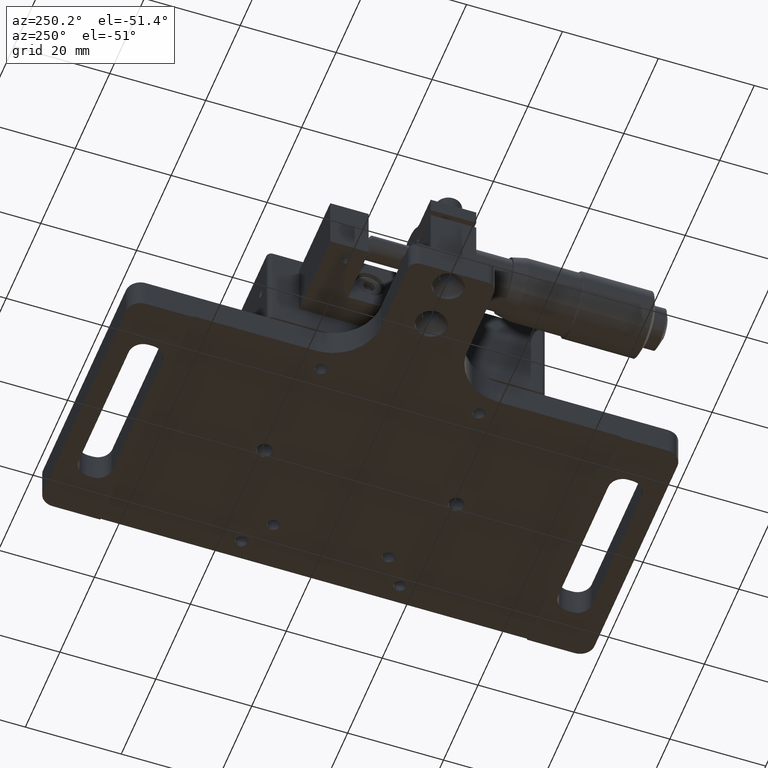
[diagram: clean part render]
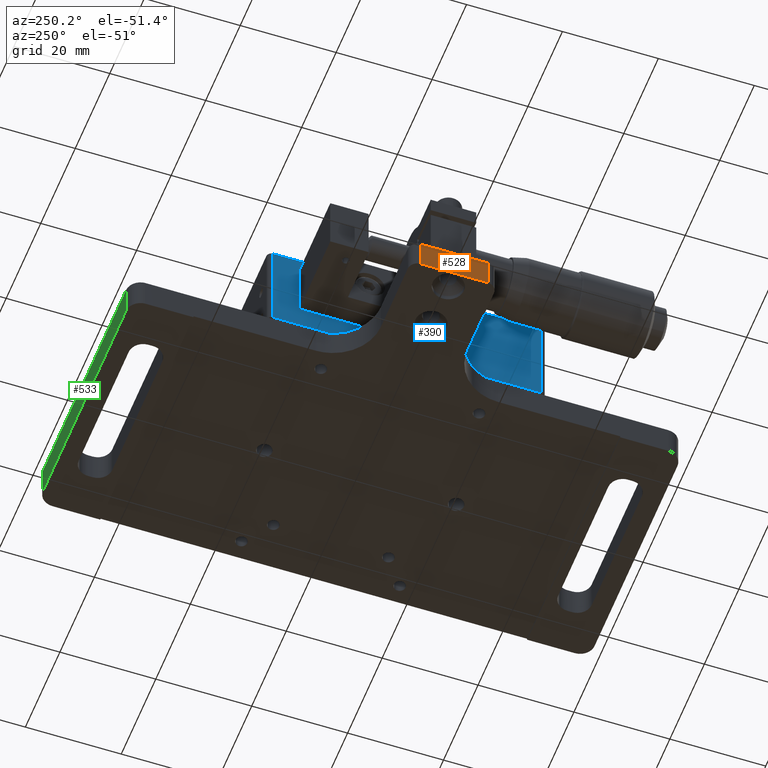
[diagram: same view with three faces highlighted in distinct colors, each labeled with its STEP entity id]
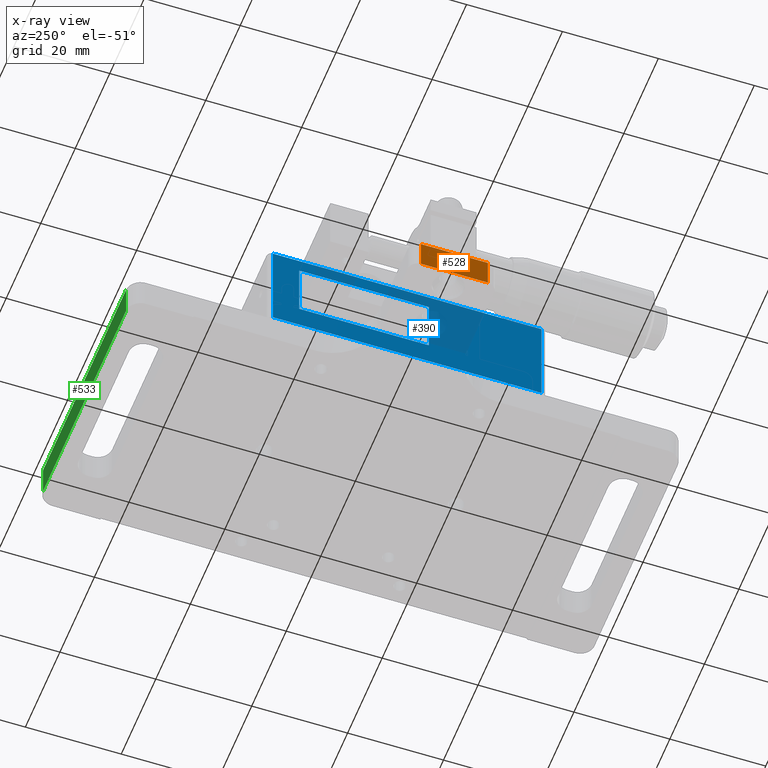
[diagram: x-ray of the same camera — body ghosted, the three highlighted faces saturated]
A machine part, auxiliary view with three faces highlighted in distinct colors.
The next image is the same camera in x-ray (body ghosted, the three faces saturated) — at least one of them is partly hidden behind the body in this view.
Their STEP definitions:

[orange] entity #528 — the highlighted face is a freeform B-spline surface patch.
#528=ADVANCED_FACE('',(#1149),#22418,.T.);
#1149=FACE_OUTER_BOUND('',#1820,.T.);
#1820=EDGE_LOOP('',(#3285,#3286,#3287,#3288));
#3285=ORIENTED_EDGE('',*,*,#18628,.F.);
#3286=ORIENTED_EDGE('',*,*,#18671,.T.);
#3287=ORIENTED_EDGE('',*,*,#18538,.F.);
#3288=ORIENTED_EDGE('',*,*,#18657,.F.);
#6487=PCURVE('',#22412,#9893);
#6625=PCURVE('',#22415,#10031);
#6674=PCURVE('',#22765,#10080);
#6691=PCURVE('',#22418,#10097);
#6692=PCURVE('',#22418,#10098);
#6693=PCURVE('',#22418,#10099);
#6694=PCURVE('',#22418,#10100);
#6698=PCURVE('',#22766,#10104);
#9893=DEFINITIONAL_REPRESENTATION('',(#13295),#46445);
#10031=DEFINITIONAL_REPRESENTATION('',(#13445),#46445);
#10080=DEFINITIONAL_REPRESENTATION('',(#13469),#46445);
#10097=DEFINITIONAL_REPRESENTATION('',(#13487),#46445);
#10098=DEFINITIONAL_REPRESENTATION('',(#13489),#46445);
#10099=DEFINITIONAL_REPRESENTATION('',(#13490),#46445);
#10100=DEFINITIONAL_REPRESENTATION('',(#13491),#46445);
#10104=DEFINITIONAL_REPRESENTATION('',(#13496),#46445);
#13294=B_SPLINE_CURVE_WITH_KNOTS('',1,(#32924,#32925),.UNSPECIFIED.,.F.,
 .F.,(2,2),(-14.,0.),.UNSPECIFIED.);
#13295=B_SPLINE_CURVE_WITH_KNOTS('',1,(#32926,#32927),.UNSPECIFIED.,.F.,
 .F.,(2,2),(-14.,0.),.UNSPECIFIED.);
#13444=B_SPLINE_CURVE_WITH_KNOTS('',1,(#33498,#33499),.UNSPECIFIED.,.F.,
 .F.,(2,2),(-14.,0.),.UNSPECIFIED.);
#13445=B_SPLINE_CURVE_WITH_KNOTS('',1,(#33500,#33501),.UNSPECIFIED.,.F.,
 .F.,(2,2),(-14.,0.),.UNSPECIFIED.);
#13468=B_SPLINE_CURVE_WITH_KNOTS('',1,(#33740,#33741),.UNSPECIFIED.,.F.,
 .F.,(2,2),(0.,6.19999999999997),.UNSPECIFIED.);
#13469=B_SPLINE_CURVE_WITH_KNOTS('',1,(#33742,#33743),.UNSPECIFIED.,.F.,
 .F.,(2,2),(0.,6.19999999999997),.UNSPECIFIED.);
#13487=B_SPLINE_CURVE_WITH_KNOTS('',1,(#33814,#33815),.UNSPECIFIED.,.F.,
 .F.,(2,2),(-14.,0.),.UNSPECIFIED.);
#13488=B_SPLINE_CURVE_WITH_KNOTS('',1,(#33816,#33817),.UNSPECIFIED.,.F.,
 .F.,(2,2),(-6.19999999999997,0.),.UNSPECIFIED.);
#13489=B_SPLINE_CURVE_WITH_KNOTS('',1,(#33818,#33819),.UNSPECIFIED.,.F.,
 .F.,(2,2),(-6.19999999999997,0.),.UNSPECIFIED.);
#13490=B_SPLINE_CURVE_WITH_KNOTS('',1,(#33820,#33821),.UNSPECIFIED.,.F.,
 .F.,(2,2),(-14.,0.),.UNSPECIFIED.);
#13491=B_SPLINE_CURVE_WITH_KNOTS('',1,(#33822,#33823),.UNSPECIFIED.,.F.,
 .F.,(2,2),(0.,6.19999999999997),.UNSPECIFIED.);
#13496=B_SPLINE_CURVE_WITH_KNOTS('',1,(#33832,#33833),.UNSPECIFIED.,.F.,
 .F.,(2,2),(-6.19999999999997,0.),.UNSPECIFIED.);
#16801=SURFACE_CURVE('',#13294,(#6487,#6693),.PCURVE_S1.);
#16891=SURFACE_CURVE('',#13444,(#6625,#6691),.PCURVE_S1.);
#16920=SURFACE_CURVE('',#13468,(#6674,#6694),.PCURVE_S1.);
#16934=SURFACE_CURVE('',#13488,(#6692,#6698),.PCURVE_S1.);
#18538=EDGE_CURVE('',#21485,#21486,#16801,.T.);
#18628=EDGE_CURVE('',#21556,#21557,#16891,.T.);
#18657=EDGE_CURVE('',#21557,#21485,#16920,.T.);
#18671=EDGE_CURVE('',#21556,#21486,#16934,.T.);
#21485=VERTEX_POINT('',#28720);
#21486=VERTEX_POINT('',#28721);
#21556=VERTEX_POINT('',#28791);
#21557=VERTEX_POINT('',#28792);
#22412=B_SPLINE_SURFACE_WITH_KNOTS('',1,1,((#24821,#24822),(#24823,#24824)),
 .UNSPECIFIED.,.F.,.F.,.F.,(2,2),(2,2),(-35.27,62.77),(-69.12,69.12),
 .UNSPECIFIED.);
#22415=B_SPLINE_SURFACE_WITH_KNOTS('',1,1,((#25121,#25122),(#25123,#25124)),
 .UNSPECIFIED.,.F.,.F.,.F.,(2,2),(2,2),(-53.52,53.52),(-42.6138701326207,
55.4261298673793),.UNSPECIFIED.);
#22418=B_SPLINE_SURFACE_WITH_KNOTS('',1,1,((#25169,#25170),(#25171,#25172)),
 .UNSPECIFIED.,.F.,.F.,.F.,(2,2),(2,2),(-5.23999999999997,2.44),(-17.52,
-0.479999999999995),.UNSPECIFIED.);
#22765=(
BOUNDED_SURFACE()
B_SPLINE_SURFACE(2,1,((#25147,#25148),(#25149,#25150),(#25151,#25152),(#25153,
#25154),(#25155,#25156),(#25157,#25158),(#25159,#25160),(#25161,#25162),
(#25163,#25164)),.UNSPECIFIED.,.T.,.F.,.F.)
B_SPLINE_SURFACE_WITH_KNOTS((3,2,2,2,3),(2,2),(0.,1.5707963267949,3.14159265358979,
4.71238898038469,6.28318530717959),(0.,7.67999999999996),.UNSPECIFIED.)
GEOMETRIC_REPRESENTATION_ITEM()
RATIONAL_B_SPLINE_SURFACE(((1.,1.),(0.707106781186548,0.707106781186548),
(1.,1.),(0.707106781186548,0.707106781186548),(1.,1.),(0.707106781186548,
0.707106781186548),(1.,1.),(0.707106781186548,0.707106781186548),(1.,1.)))
REPRESENTATION_ITEM('')
SURFACE()
);
#22766=(
BOUNDED_SURFACE()
B_SPLINE_SURFACE(2,1,((#25173,#25174),(#25175,#25176),(#25177,#25178),(#25179,
#25180),(#25181,#25182),(#25183,#25184),(#25185,#25186),(#25187,#25188),
(#25189,#25190)),.UNSPECIFIED.,.T.,.F.,.F.)
B_SPLINE_SURFACE_WITH_KNOTS((3,2,2,2,3),(2,2),(0.,1.5707963267949,3.14159265358979,
4.71238898038469,6.28318530717959),(0.,7.67999999999996),.UNSPECIFIED.)
GEOMETRIC_REPRESENTATION_ITEM()
RATIONAL_B_SPLINE_SURFACE(((1.,1.),(0.707106781186548,0.707106781186548),
(1.,1.),(0.707106781186548,0.707106781186548),(1.,1.),(0.707106781186548,
0.707106781186548),(1.,1.),(0.707106781186548,0.707106781186548),(1.,1.)))
REPRESENTATION_ITEM('')
SURFACE()
);
#24821=CARTESIAN_POINT('',(35.8970493497981,-8.26680358437653,-53.52));
#24822=CARTESIAN_POINT('',(35.8970493497981,-8.26680358437653,84.72));
#24823=CARTESIAN_POINT('',(-62.1429506502019,-8.26680358437653,-53.52));
#24824=CARTESIAN_POINT('',(-62.1429506502019,-8.26680358437653,84.72));
#25121=CARTESIAN_POINT('',(35.8970493497981,-14.4668035843765,-37.92));
#25122=CARTESIAN_POINT('',(-62.1429506502019,-14.4668035843765,-37.92));
#25123=CARTESIAN_POINT('',(35.8970493497981,-14.4668035843765,69.12));
#25124=CARTESIAN_POINT('',(-62.1429506502019,-14.4668035843765,69.12));
#25147=CARTESIAN_POINT('',(-49.8729506502019,-15.2068035843765,8.59999999999997));
#25148=CARTESIAN_POINT('',(-49.8729506502019,-7.52680358437653,8.59999999999997));
#25149=CARTESIAN_POINT('',(-49.8729506502019,-15.2068035843765,6.59999999999997));
#25150=CARTESIAN_POINT('',(-49.8729506502019,-7.52680358437653,6.59999999999997));
#25151=CARTESIAN_POINT('',(-51.8729506502019,-15.2068035843765,6.59999999999997));
#25152=CARTESIAN_POINT('',(-51.8729506502019,-7.52680358437653,6.59999999999997));
#25153=CARTESIAN_POINT('',(-53.8729506502019,-15.2068035843765,6.59999999999997));
#25154=CARTESIAN_POINT('',(-53.8729506502019,-7.52680358437653,6.59999999999997));
#25155=CARTESIAN_POINT('',(-53.8729506502019,-15.2068035843765,8.59999999999997));
#25156=CARTESIAN_POINT('',(-53.8729506502019,-7.52680358437653,8.59999999999997));
#25157=CARTESIAN_POINT('',(-53.8729506502019,-15.2068035843765,10.6));
#25158=CARTESIAN_POINT('',(-53.8729506502019,-7.52680358437653,10.6));
#25159=CARTESIAN_POINT('',(-51.8729506502019,-15.2068035843765,10.6));
#25160=CARTESIAN_POINT('',(-51.8729506502019,-7.52680358437653,10.6));
#25161=CARTESIAN_POINT('',(-49.8729506502019,-15.2068035843765,10.6));
#25162=CARTESIAN_POINT('',(-49.8729506502019,-7.52680358437653,10.6));
#25163=CARTESIAN_POINT('',(-49.8729506502019,-15.2068035843765,8.59999999999997));
#25164=CARTESIAN_POINT('',(-49.8729506502019,-7.52680358437653,8.59999999999997));
#25169=CARTESIAN_POINT('',(-53.8729506502019,-7.52680358437653,7.07999999999997));
#25170=CARTESIAN_POINT('',(-53.8729506502019,-7.52680358437653,24.12));
#25171=CARTESIAN_POINT('',(-53.8729506502019,-15.2068035843765,7.07999999999997));
#25172=CARTESIAN_POINT('',(-53.8729506502019,-15.2068035843765,24.12));
#25173=CARTESIAN_POINT('',(-49.8729506502019,-15.2068035843765,22.6));
#25174=CARTESIAN_POINT('',(-49.8729506502019,-7.52680358437653,22.6));
#25175=CARTESIAN_POINT('',(-49.8729506502019,-15.2068035843765,20.6));
#25176=CARTESIAN_POINT('',(-49.8729506502019,-7.52680358437653,20.6));
#25177=CARTESIAN_POINT('',(-51.8729506502019,-15.2068035843765,20.6));
#25178=CARTESIAN_POINT('',(-51.8729506502019,-7.52680358437653,20.6));
#25179=CARTESIAN_POINT('',(-53.8729506502019,-15.2068035843765,20.6));
#25180=CARTESIAN_POINT('',(-53.8729506502019,-7.52680358437653,20.6));
#25181=CARTESIAN_POINT('',(-53.8729506502019,-15.2068035843765,22.6));
#25182=CARTESIAN_POINT('',(-53.8729506502019,-7.52680358437653,22.6));
#25183=CARTESIAN_POINT('',(-53.8729506502019,-15.2068035843765,24.6));
#25184=CARTESIAN_POINT('',(-53.8729506502019,-7.52680358437653,24.6));
#25185=CARTESIAN_POINT('',(-51.8729506502019,-15.2068035843765,24.6));
#25186=CARTESIAN_POINT('',(-51.8729506502019,-7.52680358437653,24.6));
#25187=CARTESIAN_POINT('',(-49.8729506502019,-15.2068035843765,24.6));
#25188=CARTESIAN_POINT('',(-49.8729506502019,-7.52680358437653,24.6));
#25189=CARTESIAN_POINT('',(-49.8729506502019,-15.2068035843765,22.6));
#25190=CARTESIAN_POINT('',(-49.8729506502019,-7.52680358437653,22.6));
#28720=CARTESIAN_POINT('',(-53.8729506502019,-8.26680358437653,8.59999999999997));
#28721=CARTESIAN_POINT('',(-53.8729506502019,-8.26680358437653,22.6));
#28791=CARTESIAN_POINT('',(-53.8729506502019,-14.4668035843765,22.6));
#28792=CARTESIAN_POINT('',(-53.8729506502019,-14.4668035843765,8.59999999999997));
#32924=CARTESIAN_POINT('',(-53.8729506502019,-8.26680358437653,8.59999999999997));
#32925=CARTESIAN_POINT('',(-53.8729506502019,-8.26680358437653,22.6));
#32926=CARTESIAN_POINT('',(54.5,-7.00000000000003));
#32927=CARTESIAN_POINT('',(54.5,7.));
#33498=CARTESIAN_POINT('',(-53.8729506502019,-14.4668035843765,22.6));
#33499=CARTESIAN_POINT('',(-53.8729506502019,-14.4668035843765,8.59999999999997));
#33500=CARTESIAN_POINT('',(7.,47.1561298673793));
#33501=CARTESIAN_POINT('',(-7.00000000000003,47.1561298673793));
#33740=CARTESIAN_POINT('',(-53.8729506502019,-14.4668035843765,8.59999999999997));
#33741=CARTESIAN_POINT('',(-53.8729506502019,-8.26680358437653,8.59999999999997));
#33742=CARTESIAN_POINT('',(3.14159265358979,0.739999999999997));
#33743=CARTESIAN_POINT('',(3.14159265358979,6.93999999999997));
#33814=CARTESIAN_POINT('',(1.7,-2.));
#33815=CARTESIAN_POINT('',(1.7,-16.));
#33816=CARTESIAN_POINT('',(-53.8729506502019,-14.4668035843765,22.6));
#33817=CARTESIAN_POINT('',(-53.8729506502019,-8.26680358437653,22.6));
#33818=CARTESIAN_POINT('',(1.7,-2.));
#33819=CARTESIAN_POINT('',(-4.49999999999997,-2.));
#33820=CARTESIAN_POINT('',(-4.49999999999997,-16.));
#33821=CARTESIAN_POINT('',(-4.49999999999997,-2.));
#33822=CARTESIAN_POINT('',(1.7,-16.));
#33823=CARTESIAN_POINT('',(-4.49999999999997,-16.));
#33832=CARTESIAN_POINT('',(3.14159265358979,0.739999999999997));
#33833=CARTESIAN_POINT('',(3.14159265358979,6.93999999999997));
#46445=(
GEOMETRIC_REPRESENTATION_CONTEXT(2)
PARAMETRIC_REPRESENTATION_CONTEXT()
REPRESENTATION_CONTEXT('pspace','')
);

[blue] entity #390 — the highlighted face is a freeform B-spline surface patch.
#235=FACE_BOUND('',#1640,.T.);
#390=ADVANCED_FACE('',(#1011,#235),#22363,.T.);
#1011=FACE_OUTER_BOUND('',#1639,.T.);
#1639=EDGE_LOOP('',(#2530,#2531,#2532,#2533));
#1640=EDGE_LOOP('',(#2534,#2535,#2536,#2537));
#2530=ORIENTED_EDGE('',*,*,#18220,.T.);
#2531=ORIENTED_EDGE('',*,*,#18221,.T.);
#2532=ORIENTED_EDGE('',*,*,#18222,.T.);
#2533=ORIENTED_EDGE('',*,*,#18223,.T.);
#2534=ORIENTED_EDGE('',*,*,#18198,.F.);
#2535=ORIENTED_EDGE('',*,*,#18205,.F.);
#2536=ORIENTED_EDGE('',*,*,#18193,.F.);
#2537=ORIENTED_EDGE('',*,*,#18219,.F.);
#5880=PCURVE('',#22355,#9286);
#5885=PCURVE('',#22356,#9291);
#5896=PCURVE('',#22358,#9302);
#5929=PCURVE('',#22362,#9335);
#5936=PCURVE('',#22363,#9342);
#5937=PCURVE('',#22363,#9343);
#5938=PCURVE('',#22363,#9344);
#5939=PCURVE('',#22363,#9345);
#5940=PCURVE('',#22363,#9346);
#5941=PCURVE('',#22363,#9347);
#5942=PCURVE('',#22363,#9348);
#5943=PCURVE('',#22363,#9349);
#7137=PCURVE('',#22458,#10543);
#7216=PCURVE('',#22464,#10622);
#7441=PCURVE('',#22839,#10847);
#7444=PCURVE('',#22840,#10850);
#9286=DEFINITIONAL_REPRESENTATION('',(#12704),#46445);
#9291=DEFINITIONAL_REPRESENTATION('',(#12714),#46445);
#9302=DEFINITIONAL_REPRESENTATION('',(#12732),#46445);
#9335=DEFINITIONAL_REPRESENTATION('',(#12758),#46445);
#9342=DEFINITIONAL_REPRESENTATION('',(#12764),#46445);
#9343=DEFINITIONAL_REPRESENTATION('',(#12766),#46445);
#9344=DEFINITIONAL_REPRESENTATION('',(#12768),#46445);
#9345=DEFINITIONAL_REPRESENTATION('',(#12770),#46445);
#9346=DEFINITIONAL_REPRESENTATION('',(#12771),#46445);
#9347=DEFINITIONAL_REPRESENTATION('',(#12772),#46445);
#9348=DEFINITIONAL_REPRESENTATION('',(#12773),#46445);
#9349=DEFINITIONAL_REPRESENTATION('',(#12774),#46445);
#10543=DEFINITIONAL_REPRESENTATION('',(#13988),#46445);
#10622=DEFINITIONAL_REPRESENTATION('',(#14056),#46445);
#10847=DEFINITIONAL_REPRESENTATION('',(#14277),#46445);
#10850=DEFINITIONAL_REPRESENTATION('',(#14281),#46445);
#12703=B_SPLINE_CURVE_WITH_KNOTS('',1,(#30121,#30122),.UNSPECIFIED.,.F.,
 .F.,(2,2),(-12.,0.),.UNSPECIFIED.);
#12704=B_SPLINE_CURVE_WITH_KNOTS('',1,(#30123,#30124),.UNSPECIFIED.,.F.,
 .F.,(2,2),(-12.,0.),.UNSPECIFIED.);
#12713=B_SPLINE_CURVE_WITH_KNOTS('',1,(#30141,#30142),.UNSPECIFIED.,.F.,
 .F.,(2,2),(-12.,0.),.UNSPECIFIED.);
#12714=B_SPLINE_CURVE_WITH_KNOTS('',1,(#30143,#30144),.UNSPECIFIED.,.F.,
 .F.,(2,2),(-12.,0.),.UNSPECIFIED.);
#12731=B_SPLINE_CURVE_WITH_KNOTS('',1,(#30177,#30178),.UNSPECIFIED.,.F.,
 .F.,(2,2),(-27.,0.),.UNSPECIFIED.);
#12732=B_SPLINE_CURVE_WITH_KNOTS('',1,(#30179,#30180),.UNSPECIFIED.,.F.,
 .F.,(2,2),(-27.,0.),.UNSPECIFIED.);
#12757=B_SPLINE_CURVE_WITH_KNOTS('',1,(#30314,#30315),.UNSPECIFIED.,.F.,
 .F.,(2,2),(-27.,0.),.UNSPECIFIED.);
#12758=B_SPLINE_CURVE_WITH_KNOTS('',1,(#30316,#30317),.UNSPECIFIED.,.F.,
 .F.,(2,2),(-27.,0.),.UNSPECIFIED.);
#12763=B_SPLINE_CURVE_WITH_KNOTS('',1,(#30336,#30337),.UNSPECIFIED.,.F.,
 .F.,(2,2),(-56.,0.),.UNSPECIFIED.);
#12764=B_SPLINE_CURVE_WITH_KNOTS('',1,(#30338,#30339),.UNSPECIFIED.,.F.,
 .F.,(2,2),(-56.,0.),.UNSPECIFIED.);
#12765=B_SPLINE_CURVE_WITH_KNOTS('',1,(#30340,#30341),.UNSPECIFIED.,.F.,
 .F.,(2,2),(-20.,0.),.UNSPECIFIED.);
#12766=B_SPLINE_CURVE_WITH_KNOTS('',1,(#30342,#30343),.UNSPECIFIED.,.F.,
 .F.,(2,2),(-20.,0.),.UNSPECIFIED.);
#12767=B_SPLINE_CURVE_WITH_KNOTS('',1,(#30344,#30345),.UNSPECIFIED.,.F.,
 .F.,(2,2),(0.,56.),.UNSPECIFIED.);
#12768=B_SPLINE_CURVE_WITH_KNOTS('',1,(#30346,#30347),.UNSPECIFIED.,.F.,
 .F.,(2,2),(0.,56.),.UNSPECIFIED.);
#12769=B_SPLINE_CURVE_WITH_KNOTS('',1,(#30348,#30349),.UNSPECIFIED.,.F.,
 .F.,(2,2),(-20.,0.),.UNSPECIFIED.);
#12770=B_SPLINE_CURVE_WITH_KNOTS('',1,(#30350,#30351),.UNSPECIFIED.,.F.,
 .F.,(2,2),(-20.,0.),.UNSPECIFIED.);
#12771=B_SPLINE_CURVE_WITH_KNOTS('',1,(#30352,#30353),.UNSPECIFIED.,.F.,
 .F.,(2,2),(-12.,0.),.UNSPECIFIED.);
#12772=B_SPLINE_CURVE_WITH_KNOTS('',1,(#30354,#30355),.UNSPECIFIED.,.F.,
 .F.,(2,2),(-27.,0.),.UNSPECIFIED.);
#12773=B_SPLINE_CURVE_WITH_KNOTS('',1,(#30356,#30357),.UNSPECIFIED.,.F.,
 .F.,(2,2),(-12.,0.),.UNSPECIFIED.);
#12774=B_SPLINE_CURVE_WITH_KNOTS('',1,(#30358,#30359),.UNSPECIFIED.,.F.,
 .F.,(2,2),(-27.,0.),.UNSPECIFIED.);
#13988=B_SPLINE_CURVE_WITH_KNOTS('',1,(#35432,#35433),.UNSPECIFIED.,.F.,
 .F.,(2,2),(0.,56.),.UNSPECIFIED.);
#14056=B_SPLINE_CURVE_WITH_KNOTS('',1,(#35816,#35817),.UNSPECIFIED.,.F.,
 .F.,(2,2),(-56.,0.),.UNSPECIFIED.);
#14277=B_SPLINE_CURVE_WITH_KNOTS('',1,(#36887,#36888),.UNSPECIFIED.,.F.,
 .F.,(2,2),(-20.,0.),.UNSPECIFIED.);
#14281=B_SPLINE_CURVE_WITH_KNOTS('',1,(#36895,#36896),.UNSPECIFIED.,.F.,
 .F.,(2,2),(-20.,0.),.UNSPECIFIED.);
#16456=SURFACE_CURVE('',#12703,(#5880,#5942),.PCURVE_S1.);
#16461=SURFACE_CURVE('',#12713,(#5885,#5940),.PCURVE_S1.);
#16468=SURFACE_CURVE('',#12731,(#5896,#5941),.PCURVE_S1.);
#16482=SURFACE_CURVE('',#12757,(#5929,#5943),.PCURVE_S1.);
#16483=SURFACE_CURVE('',#12763,(#5936,#7216),.PCURVE_S1.);
#16484=SURFACE_CURVE('',#12765,(#5937,#7444),.PCURVE_S1.);
#16485=SURFACE_CURVE('',#12767,(#5938,#7137),.PCURVE_S1.);
#16486=SURFACE_CURVE('',#12769,(#5939,#7441),.PCURVE_S1.);
#18193=EDGE_CURVE('',#21253,#21254,#16456,.T.);
#18198=EDGE_CURVE('',#21259,#21257,#16461,.T.);
#18205=EDGE_CURVE('',#21254,#21259,#16468,.T.);
#18219=EDGE_CURVE('',#21257,#21253,#16482,.T.);
#18220=EDGE_CURVE('',#21270,#21272,#16483,.T.);
#18221=EDGE_CURVE('',#21272,#21273,#16484,.T.);
#18222=EDGE_CURVE('',#21273,#21271,#16485,.T.);
#18223=EDGE_CURVE('',#21271,#21270,#16486,.T.);
#21253=VERTEX_POINT('',#28488);
#21254=VERTEX_POINT('',#28489);
#21257=VERTEX_POINT('',#28492);
#21259=VERTEX_POINT('',#28494);
#21270=VERTEX_POINT('',#28505);
#21271=VERTEX_POINT('',#28506);
#21272=VERTEX_POINT('',#28507);
#21273=VERTEX_POINT('',#28508);
#22355=B_SPLINE_SURFACE_WITH_KNOTS('',1,1,((#23429,#23430),(#23431,#23432)),
 .UNSPECIFIED.,.F.,.F.,.F.,(2,2),(2,2),(-6.72,0.720000000000002),(-1.32,
13.32),.UNSPECIFIED.);
#22356=B_SPLINE_SURFACE_WITH_KNOTS('',1,1,((#23433,#23434),(#23435,#23436)),
 .UNSPECIFIED.,.F.,.F.,.F.,(2,2),(2,2),(-1.32,13.32),(-19.92,1.92),
 .UNSPECIFIED.);
#22358=B_SPLINE_SURFACE_WITH_KNOTS('',1,1,((#23441,#23442),(#23443,#23444)),
 .UNSPECIFIED.,.F.,.F.,.F.,(2,2),(2,2),(-33.82,-1.18000000000001),(-21.92,
-0.0799999999999967),.UNSPECIFIED.);
#22362=B_SPLINE_SURFACE_WITH_KNOTS('',1,1,((#23493,#23494),(#23495,#23496)),
 .UNSPECIFIED.,.F.,.F.,.F.,(2,2),(2,2),(1.18000000000001,33.82),(-1.92,
19.92),.UNSPECIFIED.);
#22363=B_SPLINE_SURFACE_WITH_KNOTS('',1,1,((#23497,#23498),(#23499,#23500)),
 .UNSPECIFIED.,.F.,.F.,.F.,(2,2),(2,2),(-33.72,33.72),(-10.37,13.87),
 .UNSPECIFIED.);
#22458=B_SPLINE_SURFACE_WITH_KNOTS('',1,1,((#25959,#25960),(#25961,#25962)),
 .UNSPECIFIED.,.F.,.F.,.F.,(2,2),(2,2),(-8.2743956043956,61.5656043956044),
(-28.5699999999999,-10.93),.UNSPECIFIED.);
#22464=B_SPLINE_SURFACE_WITH_KNOTS('',1,1,((#26127,#26128),(#26129,#26130)),
 .UNSPECIFIED.,.F.,.F.,.F.,(2,2),(2,2),(-32.52,32.5200000000001),(-34.92,
34.92),.UNSPECIFIED.);
#22839=(
BOUNDED_SURFACE()
B_SPLINE_SURFACE(2,1,((#26671,#26672),(#26673,#26674),(#26675,#26676),(#26677,
#26678),(#26679,#26680),(#26681,#26682),(#26683,#26684),(#26685,#26686),
(#26687,#26688)),.UNSPECIFIED.,.T.,.F.,.F.)
B_SPLINE_SURFACE_WITH_KNOTS((3,2,2,2,3),(2,2),(0.,1.5707963267949,3.14159265358979,
4.71238898038469,6.28318530717959),(0.,24.24),.UNSPECIFIED.)
GEOMETRIC_REPRESENTATION_ITEM()
RATIONAL_B_SPLINE_SURFACE(((1.,1.),(0.707106781186548,0.707106781186548),
(1.,1.),(0.707106781186548,0.707106781186548),(1.,1.),(0.707106781186548,
0.707106781186548),(1.,1.),(0.707106781186548,0.707106781186548),(1.,1.)))
REPRESENTATION_ITEM('')
SURFACE()
);
#22840=(
BOUNDED_SURFACE()
B_SPLINE_SURFACE(2,1,((#26689,#26690),(#26691,#26692),(#26693,#26694),(#26695,
#26696),(#26697,#26698),(#26699,#26700),(#26701,#26702),(#26703,#26704),
(#26705,#26706)),.UNSPECIFIED.,.T.,.F.,.F.)
B_SPLINE_SURFACE_WITH_KNOTS((3,2,2,2,3),(2,2),(0.,1.5707963267949,3.14159265358979,
4.71238898038469,6.28318530717959),(0.,24.24),.UNSPECIFIED.)
GEOMETRIC_REPRESENTATION_ITEM()
RATIONAL_B_SPLINE_SURFACE(((1.,1.),(0.707106781186548,0.707106781186548),
(1.,1.),(0.707106781186548,0.707106781186548),(1.,1.),(0.707106781186548,
0.707106781186548),(1.,1.),(0.707106781186548,0.707106781186548),(1.,1.)))
REPRESENTATION_ITEM('')
SURFACE()
);
#23429=CARTESIAN_POINT('',(-25.6529506502019,10.5531964156235,20.15));
#23430=CARTESIAN_POINT('',(-25.6529506502019,-4.08680358437653,20.15));
#23431=CARTESIAN_POINT('',(-33.0929506502019,10.5531964156235,20.15));
#23432=CARTESIAN_POINT('',(-33.0929506502019,-4.08680358437653,20.15));
#23433=CARTESIAN_POINT('',(-24.4529506502019,10.5531964156235,-6.84999999999999));
#23434=CARTESIAN_POINT('',(-46.2929506502019,10.5531964156235,-6.84999999999999));
#23435=CARTESIAN_POINT('',(-24.4529506502019,-4.08680358437653,-6.84999999999999));
#23436=CARTESIAN_POINT('',(-46.2929506502019,-4.08680358437653,-6.84999999999999));
#23441=CARTESIAN_POINT('',(-24.4529506502019,9.23319641562348,22.97));
#23442=CARTESIAN_POINT('',(-46.2929506502019,9.23319641562348,22.97));
#23443=CARTESIAN_POINT('',(-24.4529506502019,9.23319641562348,-9.66999999999999));
#23444=CARTESIAN_POINT('',(-46.2929506502019,9.23319641562348,-9.66999999999999));
#23493=CARTESIAN_POINT('',(-24.4529506502019,-2.76680358437653,-9.66999999999999));
#23494=CARTESIAN_POINT('',(-46.2929506502019,-2.76680358437653,-9.66999999999999));
#23495=CARTESIAN_POINT('',(-24.4529506502019,-2.76680358437653,22.97));
#23496=CARTESIAN_POINT('',(-46.2929506502019,-2.76680358437653,22.97));
#23497=CARTESIAN_POINT('',(-26.3729506502019,14.3531964156235,49.37));
#23498=CARTESIAN_POINT('',(-26.3729506502019,-9.88680358437653,49.37));
#23499=CARTESIAN_POINT('',(-26.3729506502019,14.3531964156235,-18.07));
#23500=CARTESIAN_POINT('',(-26.3729506502019,-9.88680358437653,-18.07));
#25959=CARTESIAN_POINT('',(-27.9429506502019,-7.76680358437653,50.57));
#25960=CARTESIAN_POINT('',(-10.302950650202,-7.76680358437653,50.57));
#25961=CARTESIAN_POINT('',(-27.9429506502019,-7.76680358437653,-19.27));
#25962=CARTESIAN_POINT('',(-10.302950650202,-7.76680358437653,-19.27));
#26127=CARTESIAN_POINT('',(-31.8929506502019,12.2331964156235,50.57));
#26128=CARTESIAN_POINT('',(-31.8929506502019,12.2331964156235,-19.27));
#26129=CARTESIAN_POINT('',(33.1470493497981,12.2331964156235,50.57));
#26130=CARTESIAN_POINT('',(33.1470493497981,12.2331964156235,-19.27));
#26671=CARTESIAN_POINT('',(-24.3729506502019,14.3531964156235,43.65));
#26672=CARTESIAN_POINT('',(-24.3729506502019,-9.88680358437653,43.65));
#26673=CARTESIAN_POINT('',(-24.3729506502019,14.3531964156235,44.65));
#26674=CARTESIAN_POINT('',(-24.3729506502019,-9.88680358437653,44.65));
#26675=CARTESIAN_POINT('',(-25.3729506502019,14.3531964156235,44.65));
#26676=CARTESIAN_POINT('',(-25.3729506502019,-9.88680358437653,44.65));
#26677=CARTESIAN_POINT('',(-26.3729506502019,14.3531964156235,44.65));
#26678=CARTESIAN_POINT('',(-26.3729506502019,-9.88680358437653,44.65));
#26679=CARTESIAN_POINT('',(-26.3729506502019,14.3531964156235,43.65));
#26680=CARTESIAN_POINT('',(-26.3729506502019,-9.88680358437653,43.65));
#26681=CARTESIAN_POINT('',(-26.3729506502019,14.3531964156235,42.65));
#26682=CARTESIAN_POINT('',(-26.3729506502019,-9.88680358437653,42.65));
#26683=CARTESIAN_POINT('',(-25.3729506502019,14.3531964156235,42.65));
#26684=CARTESIAN_POINT('',(-25.3729506502019,-9.88680358437653,42.65));
#26685=CARTESIAN_POINT('',(-24.3729506502019,14.3531964156235,42.65));
#26686=CARTESIAN_POINT('',(-24.3729506502019,-9.88680358437653,42.65));
#26687=CARTESIAN_POINT('',(-24.3729506502019,14.3531964156235,43.65));
#26688=CARTESIAN_POINT('',(-24.3729506502019,-9.88680358437653,43.65));
#26689=CARTESIAN_POINT('',(-24.3729506502019,-9.88680358437653,-12.35));
#26690=CARTESIAN_POINT('',(-24.3729506502019,14.3531964156235,-12.35));
#26691=CARTESIAN_POINT('',(-24.3729506502019,-9.88680358437653,-13.35));
#26692=CARTESIAN_POINT('',(-24.3729506502019,14.3531964156235,-13.35));
#26693=CARTESIAN_POINT('',(-25.3729506502019,-9.88680358437653,-13.35));
#26694=CARTESIAN_POINT('',(-25.3729506502019,14.3531964156235,-13.35));
#26695=CARTESIAN_POINT('',(-26.3729506502019,-9.88680358437653,-13.35));
#26696=CARTESIAN_POINT('',(-26.3729506502019,14.3531964156235,-13.35));
#26697=CARTESIAN_POINT('',(-26.3729506502019,-9.88680358437653,-12.35));
#26698=CARTESIAN_POINT('',(-26.3729506502019,14.3531964156235,-12.35));
#26699=CARTESIAN_POINT('',(-26.3729506502019,-9.88680358437653,-11.35));
#26700=CARTESIAN_POINT('',(-26.3729506502019,14.3531964156235,-11.35));
#26701=CARTESIAN_POINT('',(-25.3729506502019,-9.88680358437653,-11.35));
#26702=CARTESIAN_POINT('',(-25.3729506502019,14.3531964156235,-11.35));
#26703=CARTESIAN_POINT('',(-24.3729506502019,-9.88680358437653,-11.35));
#26704=CARTESIAN_POINT('',(-24.3729506502019,14.3531964156235,-11.35));
#26705=CARTESIAN_POINT('',(-24.3729506502019,-9.88680358437653,-12.35));
#26706=CARTESIAN_POINT('',(-24.3729506502019,14.3531964156235,-12.35));
#28488=CARTESIAN_POINT('',(-26.3729506502019,-2.76680358437653,20.15));
#28489=CARTESIAN_POINT('',(-26.3729506502019,9.23319641562347,20.15));
#28492=CARTESIAN_POINT('',(-26.3729506502019,-2.76680358437653,-6.84999999999999));
#28494=CARTESIAN_POINT('',(-26.3729506502019,9.23319641562347,-6.84999999999999));
#28505=CARTESIAN_POINT('',(-26.3729506502019,12.2331964156235,43.65));
#28506=CARTESIAN_POINT('',(-26.3729506502019,-7.76680358437653,43.65));
#28507=CARTESIAN_POINT('',(-26.3729506502019,12.2331964156235,-12.35));
#28508=CARTESIAN_POINT('',(-26.3729506502019,-7.76680358437653,-12.35));
#30121=CARTESIAN_POINT('',(-26.3729506502019,-2.76680358437653,20.15));
#30122=CARTESIAN_POINT('',(-26.3729506502019,9.23319641562347,20.15));
#30123=CARTESIAN_POINT('',(-6.,12.));
#30124=CARTESIAN_POINT('',(-6.,-9.99200722162644E-16));
#30141=CARTESIAN_POINT('',(-26.3729506502019,9.23319641562347,-6.84999999999999));
#30142=CARTESIAN_POINT('',(-26.3729506502019,-2.76680358437653,-6.84999999999999));
#30143=CARTESIAN_POINT('',(7.66053886991357E-15,-18.));
#30144=CARTESIAN_POINT('',(12.,-18.));
#30177=CARTESIAN_POINT('',(-26.3729506502019,9.23319641562347,20.15));
#30178=CARTESIAN_POINT('',(-26.3729506502019,9.23319641562347,-6.84999999999999));
#30179=CARTESIAN_POINT('',(-31.,-20.));
#30180=CARTESIAN_POINT('',(-4.00000000000001,-20.));
#30314=CARTESIAN_POINT('',(-26.3729506502019,-2.76680358437653,-6.84999999999999));
#30315=CARTESIAN_POINT('',(-26.3729506502019,-2.76680358437653,20.15));
#30316=CARTESIAN_POINT('',(4.00000000000001,2.10928349595799E-16));
#30317=CARTESIAN_POINT('',(31.,1.63469470936743E-15));
#30336=CARTESIAN_POINT('',(-26.3729506502019,12.2331964156235,43.65));
#30337=CARTESIAN_POINT('',(-26.3729506502019,12.2331964156235,-12.35));
#30338=CARTESIAN_POINT('',(-28.,-8.25000000000003));
#30339=CARTESIAN_POINT('',(28.,-8.25000000000003));
#30340=CARTESIAN_POINT('',(-26.3729506502019,12.2331964156235,-12.35));
#30341=CARTESIAN_POINT('',(-26.3729506502019,-7.76680358437653,-12.35));
#30342=CARTESIAN_POINT('',(28.,-8.25000000000003));
#30343=CARTESIAN_POINT('',(28.,11.75));
#30344=CARTESIAN_POINT('',(-26.3729506502019,-7.76680358437653,-12.35));
#30345=CARTESIAN_POINT('',(-26.3729506502019,-7.76680358437653,43.65));
#30346=CARTESIAN_POINT('',(28.,11.75));
#30347=CARTESIAN_POINT('',(-28.,11.75));
#30348=CARTESIAN_POINT('',(-26.3729506502019,-7.76680358437653,43.65));
#30349=CARTESIAN_POINT('',(-26.3729506502019,12.2331964156235,43.65));
#30350=CARTESIAN_POINT('',(-28.,11.75));
#30351=CARTESIAN_POINT('',(-28.,-8.25000000000003));
#30352=CARTESIAN_POINT('',(22.5,-5.25));
#30353=CARTESIAN_POINT('',(22.5,6.75));
#30354=CARTESIAN_POINT('',(-4.5,-5.25));
#30355=CARTESIAN_POINT('',(22.5,-5.25));
#30356=CARTESIAN_POINT('',(-4.5,6.75));
#30357=CARTESIAN_POINT('',(-4.5,-5.25));
#30358=CARTESIAN_POINT('',(22.5,6.75));
#30359=CARTESIAN_POINT('',(-4.5,6.75));
#35432=CARTESIAN_POINT('',(54.6456043956044,-26.9999999999999));
#35433=CARTESIAN_POINT('',(-1.35439560439559,-27.));
#35816=CARTESIAN_POINT('',(-27.,-28.));
#35817=CARTESIAN_POINT('',(-27.,28.));
#36887=CARTESIAN_POINT('',(3.14159265358979,22.12));
#36888=CARTESIAN_POINT('',(3.14159265358979,2.12));
#36895=CARTESIAN_POINT('',(3.14159265358979,22.12));
#36896=CARTESIAN_POINT('',(3.14159265358979,2.12));
#46445=(
GEOMETRIC_REPRESENTATION_CONTEXT(2)
PARAMETRIC_REPRESENTATION_CONTEXT()
REPRESENTATION_CONTEXT('pspace','')
);

[green] entity #533 — the highlighted face is a freeform B-spline surface patch.
#533=ADVANCED_FACE('',(#1154),#22420,.T.);
#1154=FACE_OUTER_BOUND('',#1825,.T.);
#1825=EDGE_LOOP('',(#3305,#3306,#3307,#3308));
#3305=ORIENTED_EDGE('',*,*,#18677,.F.);
#3306=ORIENTED_EDGE('',*,*,#18679,.T.);
#3307=ORIENTED_EDGE('',*,*,#18680,.T.);
#3308=ORIENTED_EDGE('',*,*,#18532,.F.);
#6481=PCURVE('',#22412,#9887);
#6708=PCURVE('',#22768,#10114);
#6711=PCURVE('',#22420,#10117);
#6712=PCURVE('',#22420,#10118);
#6713=PCURVE('',#22420,#10119);
#6714=PCURVE('',#22420,#10120);
#6718=PCURVE('',#22769,#10124);
#6786=PCURVE('',#22428,#10192);
#9887=DEFINITIONAL_REPRESENTATION('',(#13289),#46445);
#10114=DEFINITIONAL_REPRESENTATION('',(#13510),#46445);
#10117=DEFINITIONAL_REPRESENTATION('',(#13514),#46445);
#10118=DEFINITIONAL_REPRESENTATION('',(#13516),#46445);
#10119=DEFINITIONAL_REPRESENTATION('',(#13518),#46445);
#10120=DEFINITIONAL_REPRESENTATION('',(#13519),#46445);
#10124=DEFINITIONAL_REPRESENTATION('',(#13524),#46445);
#10192=DEFINITIONAL_REPRESENTATION('',(#13612),#46445);
#13288=B_SPLINE_CURVE_WITH_KNOTS('',1,(#32894,#32895),.UNSPECIFIED.,.F.,
 .F.,(2,2),(-48.,0.),.UNSPECIFIED.);
#13289=B_SPLINE_CURVE_WITH_KNOTS('',1,(#32896,#32897),.UNSPECIFIED.,.F.,
 .F.,(2,2),(-48.,0.),.UNSPECIFIED.);
#13509=B_SPLINE_CURVE_WITH_KNOTS('',1,(#33861,#33862),.UNSPECIFIED.,.F.,
 .F.,(2,2),(0.,6.49999999999997),.UNSPECIFIED.);
#13510=B_SPLINE_CURVE_WITH_KNOTS('',1,(#33863,#33864),.UNSPECIFIED.,.F.,
 .F.,(2,2),(0.,6.49999999999997),.UNSPECIFIED.);
#13514=B_SPLINE_CURVE_WITH_KNOTS('',1,(#33871,#33872),.UNSPECIFIED.,.F.,
 .F.,(2,2),(0.,6.49999999999997),.UNSPECIFIED.);
#13515=B_SPLINE_CURVE_WITH_KNOTS('',1,(#33873,#33874),.UNSPECIFIED.,.F.,
 .F.,(2,2),(0.,48.),.UNSPECIFIED.);
#13516=B_SPLINE_CURVE_WITH_KNOTS('',1,(#33875,#33876),.UNSPECIFIED.,.F.,
 .F.,(2,2),(0.,48.),.UNSPECIFIED.);
#13517=B_SPLINE_CURVE_WITH_KNOTS('',1,(#33877,#33878),.UNSPECIFIED.,.F.,
 .F.,(2,2),(-6.49999999999997,0.),.UNSPECIFIED.);
#13518=B_SPLINE_CURVE_WITH_KNOTS('',1,(#33879,#33880),.UNSPECIFIED.,.F.,
 .F.,(2,2),(-6.49999999999997,0.),.UNSPECIFIED.);
#13519=B_SPLINE_CURVE_WITH_KNOTS('',1,(#33881,#33882),.UNSPECIFIED.,.F.,
 .F.,(2,2),(-48.,0.),.UNSPECIFIED.);
#13524=B_SPLINE_CURVE_WITH_KNOTS('',1,(#33894,#33895),.UNSPECIFIED.,.F.,
 .F.,(2,2),(-6.49999999999997,0.),.UNSPECIFIED.);
#13612=B_SPLINE_CURVE_WITH_KNOTS('',1,(#34085,#34086),.UNSPECIFIED.,.F.,
 .F.,(2,2),(0.,48.),.UNSPECIFIED.);
#16795=SURFACE_CURVE('',#13288,(#6481,#6714),.PCURVE_S1.);
#16940=SURFACE_CURVE('',#13509,(#6708,#6711),.PCURVE_S1.);
#16942=SURFACE_CURVE('',#13515,(#6712,#6786),.PCURVE_S1.);
#16943=SURFACE_CURVE('',#13517,(#6713,#6718),.PCURVE_S1.);
#18532=EDGE_CURVE('',#21479,#21480,#16795,.T.);
#18677=EDGE_CURVE('',#21589,#21479,#16940,.T.);
#18679=EDGE_CURVE('',#21589,#21590,#16942,.T.);
#18680=EDGE_CURVE('',#21590,#21480,#16943,.T.);
#21479=VERTEX_POINT('',#28714);
#21480=VERTEX_POINT('',#28715);
#21589=VERTEX_POINT('',#28824);
#21590=VERTEX_POINT('',#28825);
#22412=B_SPLINE_SURFACE_WITH_KNOTS('',1,1,((#24821,#24822),(#24823,#24824)),
 .UNSPECIFIED.,.F.,.F.,.F.,(2,2),(2,2),(-35.27,62.77),(-69.12,69.12),
 .UNSPECIFIED.);
#22420=B_SPLINE_SURFACE_WITH_KNOTS('',1,1,((#25231,#25232),(#25233,#25234)),
 .UNSPECIFIED.,.F.,.F.,.F.,(2,2),(2,2),(-5.26999999999997,2.77),(-1.92,
55.92),.UNSPECIFIED.);
#22428=B_SPLINE_SURFACE_WITH_KNOTS('',1,1,((#25443,#25444),(#25445,#25446)),
 .UNSPECIFIED.,.F.,.F.,.F.,(2,2),(2,2),(-101.084747669385,-85.2447476693846),
(-32.52,32.52),.UNSPECIFIED.);
#22768=(
BOUNDED_SURFACE()
B_SPLINE_SURFACE(2,1,((#25213,#25214),(#25215,#25216),(#25217,#25218),(#25219,
#25220),(#25221,#25222),(#25223,#25224),(#25225,#25226),(#25227,#25228),
(#25229,#25230)),.UNSPECIFIED.,.T.,.F.,.F.)
B_SPLINE_SURFACE_WITH_KNOTS((3,2,2,2,3),(2,2),(0.,1.5707963267949,3.14159265358979,
4.71238898038469,6.28318530717959),(0.,8.03999999999996),.UNSPECIFIED.)
GEOMETRIC_REPRESENTATION_ITEM()
RATIONAL_B_SPLINE_SURFACE(((1.,1.),(0.707106781186548,0.707106781186548),
(1.,1.),(0.707106781186548,0.707106781186548),(1.,1.),(0.707106781186548,
0.707106781186548),(1.,1.),(0.707106781186548,0.707106781186548),(1.,1.)))
REPRESENTATION_ITEM('')
SURFACE()
);
#22769=(
BOUNDED_SURFACE()
B_SPLINE_SURFACE(2,1,((#25235,#25236),(#25237,#25238),(#25239,#25240),(#25241,
#25242),(#25243,#25244),(#25245,#25246),(#25247,#25248),(#25249,#25250),
(#25251,#25252)),.UNSPECIFIED.,.T.,.F.,.F.)
B_SPLINE_SURFACE_WITH_KNOTS((3,2,2,2,3),(2,2),(0.,1.5707963267949,3.14159265358979,
4.71238898038469,6.28318530717959),(0.,8.03999999999996),.UNSPECIFIED.)
GEOMETRIC_REPRESENTATION_ITEM()
RATIONAL_B_SPLINE_SURFACE(((1.,1.),(0.707106781186548,0.707106781186548),
(1.,1.),(0.707106781186548,0.707106781186548),(1.,1.),(0.707106781186548,
0.707106781186548),(1.,1.),(0.707106781186548,0.707106781186548),(1.,1.)))
REPRESENTATION_ITEM('')
SURFACE()
);
#24821=CARTESIAN_POINT('',(35.8970493497981,-8.26680358437653,-53.52));
#24822=CARTESIAN_POINT('',(35.8970493497981,-8.26680358437653,84.72));
#24823=CARTESIAN_POINT('',(-62.1429506502019,-8.26680358437653,-53.52));
#24824=CARTESIAN_POINT('',(-62.1429506502019,-8.26680358437653,84.72));
#25213=CARTESIAN_POINT('',(21.6270493497981,-7.49680358437653,-38.9));
#25214=CARTESIAN_POINT('',(21.6270493497981,-15.5368035843765,-38.9));
#25215=CARTESIAN_POINT('',(21.6270493497981,-7.49680358437653,-41.9));
#25216=CARTESIAN_POINT('',(21.6270493497981,-15.5368035843765,-41.9));
#25217=CARTESIAN_POINT('',(24.6270493497981,-7.49680358437653,-41.9));
#25218=CARTESIAN_POINT('',(24.6270493497981,-15.5368035843765,-41.9));
#25219=CARTESIAN_POINT('',(27.6270493497981,-7.49680358437653,-41.9));
#25220=CARTESIAN_POINT('',(27.6270493497981,-15.5368035843765,-41.9));
#25221=CARTESIAN_POINT('',(27.6270493497981,-7.49680358437653,-38.9));
#25222=CARTESIAN_POINT('',(27.6270493497981,-15.5368035843765,-38.9));
#25223=CARTESIAN_POINT('',(27.6270493497981,-7.49680358437653,-35.9));
#25224=CARTESIAN_POINT('',(27.6270493497981,-15.5368035843765,-35.9));
#25225=CARTESIAN_POINT('',(24.6270493497981,-7.49680358437653,-35.9));
#25226=CARTESIAN_POINT('',(24.6270493497981,-15.5368035843765,-35.9));
#25227=CARTESIAN_POINT('',(21.6270493497981,-7.49680358437653,-35.9));
#25228=CARTESIAN_POINT('',(21.6270493497981,-15.5368035843765,-35.9));
#25229=CARTESIAN_POINT('',(21.6270493497981,-7.49680358437653,-38.9));
#25230=CARTESIAN_POINT('',(21.6270493497981,-15.5368035843765,-38.9));
#25231=CARTESIAN_POINT('',(29.5470493497981,-7.49680358437653,-41.9));
#25232=CARTESIAN_POINT('',(-28.2929506502019,-7.49680358437653,-41.9));
#25233=CARTESIAN_POINT('',(29.5470493497981,-15.5368035843765,-41.9));
#25234=CARTESIAN_POINT('',(-28.2929506502019,-15.5368035843765,-41.9));
#25235=CARTESIAN_POINT('',(-20.3729506502019,-7.49680358437653,-38.9));
#25236=CARTESIAN_POINT('',(-20.3729506502019,-15.5368035843765,-38.9));
#25237=CARTESIAN_POINT('',(-20.3729506502019,-7.49680358437653,-35.9));
#25238=CARTESIAN_POINT('',(-20.3729506502019,-15.5368035843765,-35.9));
#25239=CARTESIAN_POINT('',(-23.3729506502019,-7.49680358437653,-35.9));
#25240=CARTESIAN_POINT('',(-23.3729506502019,-15.5368035843765,-35.9));
#25241=CARTESIAN_POINT('',(-26.3729506502019,-7.49680358437653,-35.9));
#25242=CARTESIAN_POINT('',(-26.3729506502019,-15.5368035843765,-35.9));
#25243=CARTESIAN_POINT('',(-26.3729506502019,-7.49680358437653,-38.9));
#25244=CARTESIAN_POINT('',(-26.3729506502019,-15.5368035843765,-38.9));
#25245=CARTESIAN_POINT('',(-26.3729506502019,-7.49680358437653,-41.9));
#25246=CARTESIAN_POINT('',(-26.3729506502019,-15.5368035843765,-41.9));
#25247=CARTESIAN_POINT('',(-23.3729506502019,-7.49680358437653,-41.9));
#25248=CARTESIAN_POINT('',(-23.3729506502019,-15.5368035843765,-41.9));
#25249=CARTESIAN_POINT('',(-20.3729506502019,-7.49680358437653,-41.9));
#25250=CARTESIAN_POINT('',(-20.3729506502019,-15.5368035843765,-41.9));
#25251=CARTESIAN_POINT('',(-20.3729506502019,-7.49680358437653,-38.9));
#25252=CARTESIAN_POINT('',(-20.3729506502019,-15.5368035843765,-38.9));
#25443=CARTESIAN_POINT('',(33.1470493497981,-14.7668035843765,-43.32));
#25444=CARTESIAN_POINT('',(-31.8929506502019,-14.7668035843765,-43.32));
#25445=CARTESIAN_POINT('',(33.1470493497981,-14.7668035843765,-27.48));
#25446=CARTESIAN_POINT('',(-31.8929506502019,-14.7668035843765,-27.48));
#28714=CARTESIAN_POINT('',(24.6270493497981,-8.26680358437653,-41.9));
#28715=CARTESIAN_POINT('',(-23.3729506502019,-8.26680358437653,-41.9));
#28824=CARTESIAN_POINT('',(24.6270493497981,-14.7668035843765,-41.9));
#28825=CARTESIAN_POINT('',(-23.3729506502019,-14.7668035843765,-41.9));
#32894=CARTESIAN_POINT('',(24.6270493497981,-8.26680358437653,-41.9));
#32895=CARTESIAN_POINT('',(-23.3729506502019,-8.26680358437653,-41.9));
#32896=CARTESIAN_POINT('',(-24.,-57.5));
#32897=CARTESIAN_POINT('',(24.,-57.5));
#33861=CARTESIAN_POINT('',(24.6270493497981,-14.7668035843765,-41.9));
#33862=CARTESIAN_POINT('',(24.6270493497981,-8.26680358437653,-41.9));
#33863=CARTESIAN_POINT('',(1.5707963267949,7.26999999999997));
#33864=CARTESIAN_POINT('',(1.5707963267949,0.769999999999999));
#33871=CARTESIAN_POINT('',(2.,3.));
#33872=CARTESIAN_POINT('',(-4.49999999999997,3.));
#33873=CARTESIAN_POINT('',(24.6270493497981,-14.7668035843765,-41.9));
#33874=CARTESIAN_POINT('',(-23.3729506502019,-14.7668035843765,-41.9));
#33875=CARTESIAN_POINT('',(2.,3.));
#33876=CARTESIAN_POINT('',(2.,51.));
#33877=CARTESIAN_POINT('',(-23.3729506502019,-14.7668035843765,-41.9));
#33878=CARTESIAN_POINT('',(-23.3729506502019,-8.26680358437653,-41.9));
#33879=CARTESIAN_POINT('',(2.,51.));
#33880=CARTESIAN_POINT('',(-4.49999999999997,51.));
#33881=CARTESIAN_POINT('',(-4.49999999999997,3.));
#33882=CARTESIAN_POINT('',(-4.49999999999997,51.));
#33894=CARTESIAN_POINT('',(4.71238898038469,7.26999999999997));
#33895=CARTESIAN_POINT('',(4.71238898038469,0.769999999999999));
#34085=CARTESIAN_POINT('',(-99.6647476693846,-24.));
#34086=CARTESIAN_POINT('',(-99.6647476693846,24.));
#46445=(
GEOMETRIC_REPRESENTATION_CONTEXT(2)
PARAMETRIC_REPRESENTATION_CONTEXT()
REPRESENTATION_CONTEXT('pspace','')
);